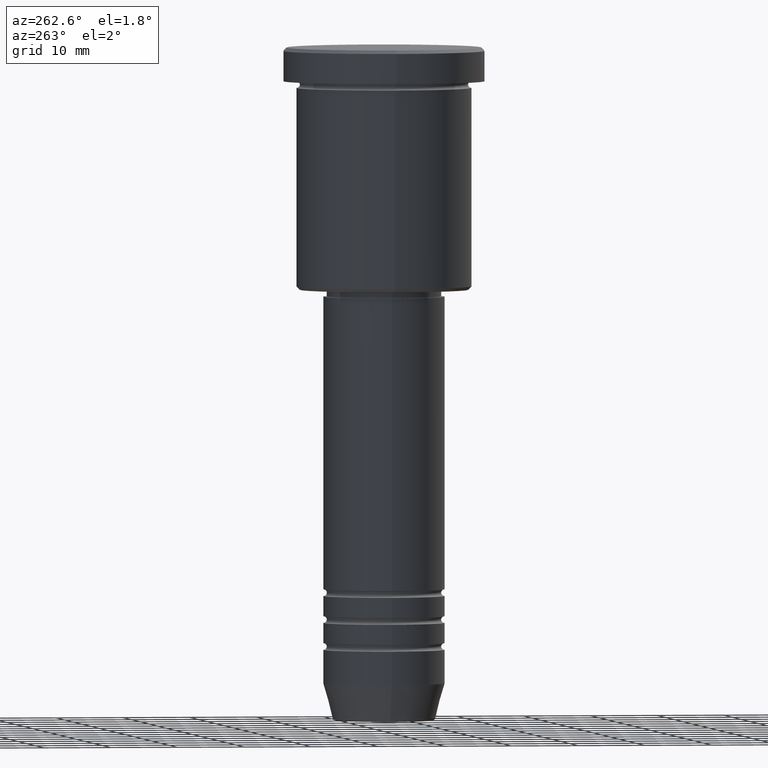
[diagram: clean part render]
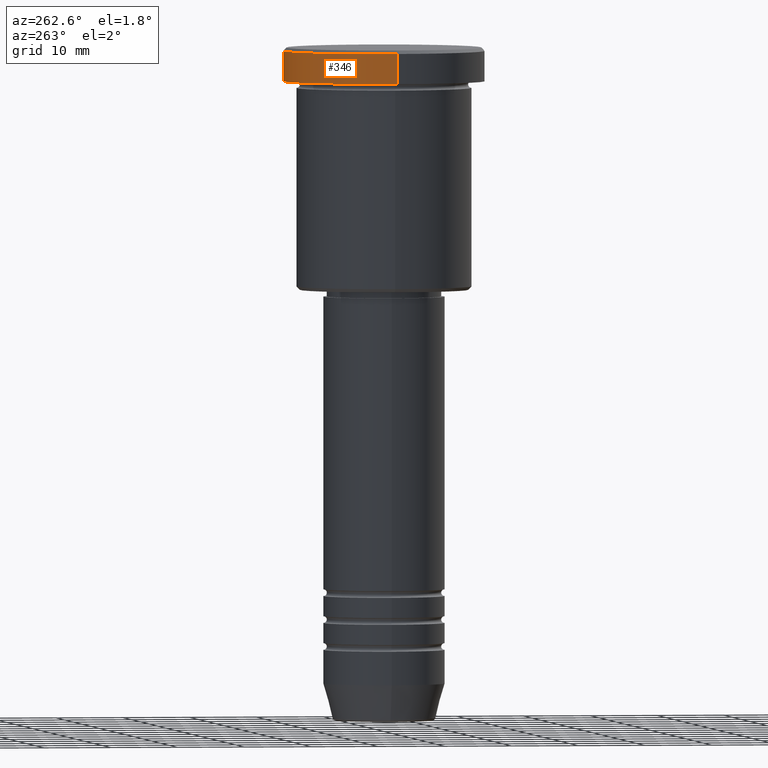
[diagram: same view with one face highlighted and labeled with its STEP entity id]
A machine part, auxiliary view. The second image highlights one B-rep face of the part: STEP entity #346.
In plain terms, the highlighted cylindrical surface (partial cylindrical patch) has radius 15 mm, axis along (-0, -0, 1).
Its self-contained STEP definition (entity closure, byte-faithful):
#25 = VERTEX_POINT ( 'NONE', #678 ) ;
#103 = FACE_OUTER_BOUND ( 'NONE', #635, .T. ) ;
#163 = EDGE_CURVE ( 'NONE', #181, #1164, #900, .T. ) ;
#181 = VERTEX_POINT ( 'NONE', #609 ) ;
#188 = CARTESIAN_POINT ( 'NONE',  ( 0.000000000000000000, 0.000000000000000000, 0.000000000000000000 ) ) ;
#272 = CYLINDRICAL_SURFACE ( 'NONE', #1171, 15.00000000000000000 ) ;
#291 = CIRCLE ( 'NONE', #967, 15.00000000000000000 ) ;
#312 = EDGE_CURVE ( 'NONE', #181, #25, #876, .T. ) ;
#340 = AXIS2_PLACEMENT_3D ( 'NONE', #1007, #838, #924 ) ;
#346 = ADVANCED_FACE ( 'NONE', ( #103 ), #272, .T. ) ;
#353 = DIRECTION ( 'NONE',  ( -0.000000000000000000, -0.000000000000000000, 1.000000000000000000 ) ) ;
#377 = DIRECTION ( 'NONE',  ( 1.000000000000000000, 0.000000000000000000, 0.000000000000000000 ) ) ;
#378 = DIRECTION ( 'NONE',  ( -0.000000000000000000, -0.000000000000000000, 1.000000000000000000 ) ) ;
#388 = CARTESIAN_POINT ( 'NONE',  ( -15.00000000000000000, 1.836970198721029589E-15, -0.4999999999999831246 ) ) ;
#412 = EDGE_CURVE ( 'NONE', #25, #1012, #848, .T. ) ;
#422 = CARTESIAN_POINT ( 'NONE',  ( 15.00000000000000000, 0.000000000000000000, 0.000000000000000000 ) ) ;
#498 = CARTESIAN_POINT ( 'NONE',  ( 15.00000000000000000, 0.000000000000000000, -0.4999999999999831246 ) ) ;
#519 = ORIENTED_EDGE ( 'NONE', *, *, #944, .T. ) ;
#530 = ORIENTED_EDGE ( 'NONE', *, *, #312, .T. ) ;
#565 = DIRECTION ( 'NONE',  ( 1.000000000000000000, 0.000000000000000000, 0.000000000000000000 ) ) ;
#609 = CARTESIAN_POINT ( 'NONE',  ( 15.00000000000000000, 0.000000000000000000, -4.999999999999999112 ) ) ;
#635 = EDGE_LOOP ( 'NONE', ( #530, #990, #519, #956 ) ) ;
#678 = CARTESIAN_POINT ( 'NONE',  ( -15.00000000000000000, 1.836970198721029589E-15, -4.999999999999999112 ) ) ;
#712 = DIRECTION ( 'NONE',  ( -0.000000000000000000, -0.000000000000000000, 1.000000000000000000 ) ) ;
#765 = DIRECTION ( 'NONE',  ( 0.000000000000000000, 0.000000000000000000, -1.000000000000000000 ) ) ;
#766 = CARTESIAN_POINT ( 'NONE',  ( -15.00000000000000000, 1.836970198721029589E-15, 0.000000000000000000 ) ) ;
#838 = DIRECTION ( 'NONE',  ( -0.000000000000000000, -0.000000000000000000, 1.000000000000000000 ) ) ;
#848 = LINE ( 'NONE', #766, #1018 ) ;
#876 = CIRCLE ( 'NONE', #340, 15.00000000000000000 ) ;
#900 = LINE ( 'NONE', #422, #912 ) ;
#912 = VECTOR ( 'NONE', #712, 1000.000000000000000 ) ;
#924 = DIRECTION ( 'NONE',  ( 1.000000000000000000, 0.000000000000000000, 0.000000000000000000 ) ) ;
#944 = EDGE_CURVE ( 'NONE', #1012, #1164, #291, .T. ) ;
#956 = ORIENTED_EDGE ( 'NONE', *, *, #163, .F. ) ;
#967 = AXIS2_PLACEMENT_3D ( 'NONE', #1121, #765, #377 ) ;
#990 = ORIENTED_EDGE ( 'NONE', *, *, #412, .T. ) ;
#1007 = CARTESIAN_POINT ( 'NONE',  ( 0.000000000000000000, 0.000000000000000000, -4.999999999999999112 ) ) ;
#1012 = VERTEX_POINT ( 'NONE', #388 ) ;
#1018 = VECTOR ( 'NONE', #378, 1000.000000000000000 ) ;
#1121 = CARTESIAN_POINT ( 'NONE',  ( 0.000000000000000000, 0.000000000000000000, -0.4999999999999831246 ) ) ;
#1164 = VERTEX_POINT ( 'NONE', #498 ) ;
#1171 = AXIS2_PLACEMENT_3D ( 'NONE', #188, #353, #565 ) ;